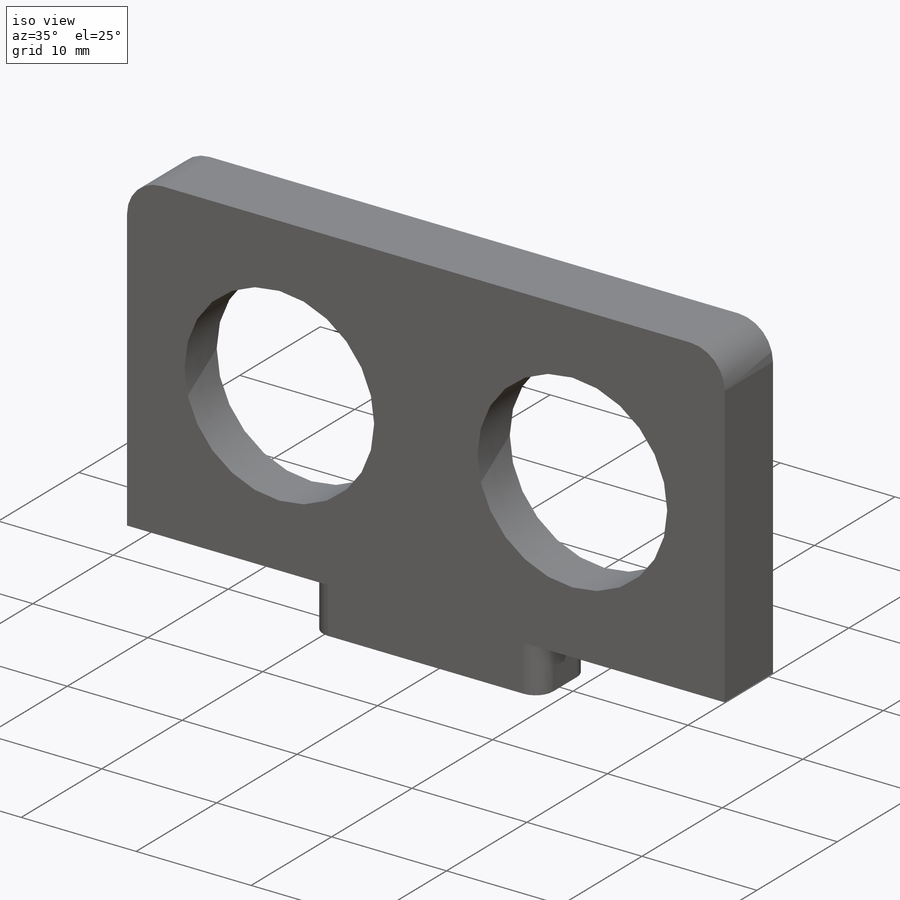
[diagram: iso view]
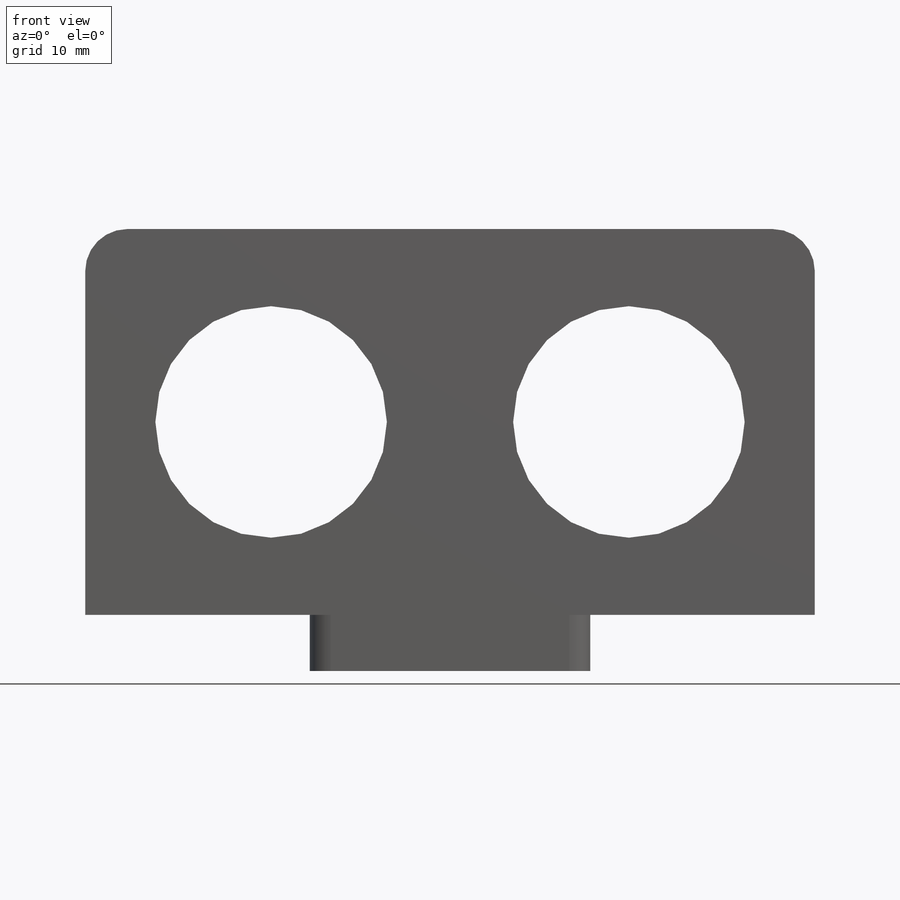
[diagram: front view]
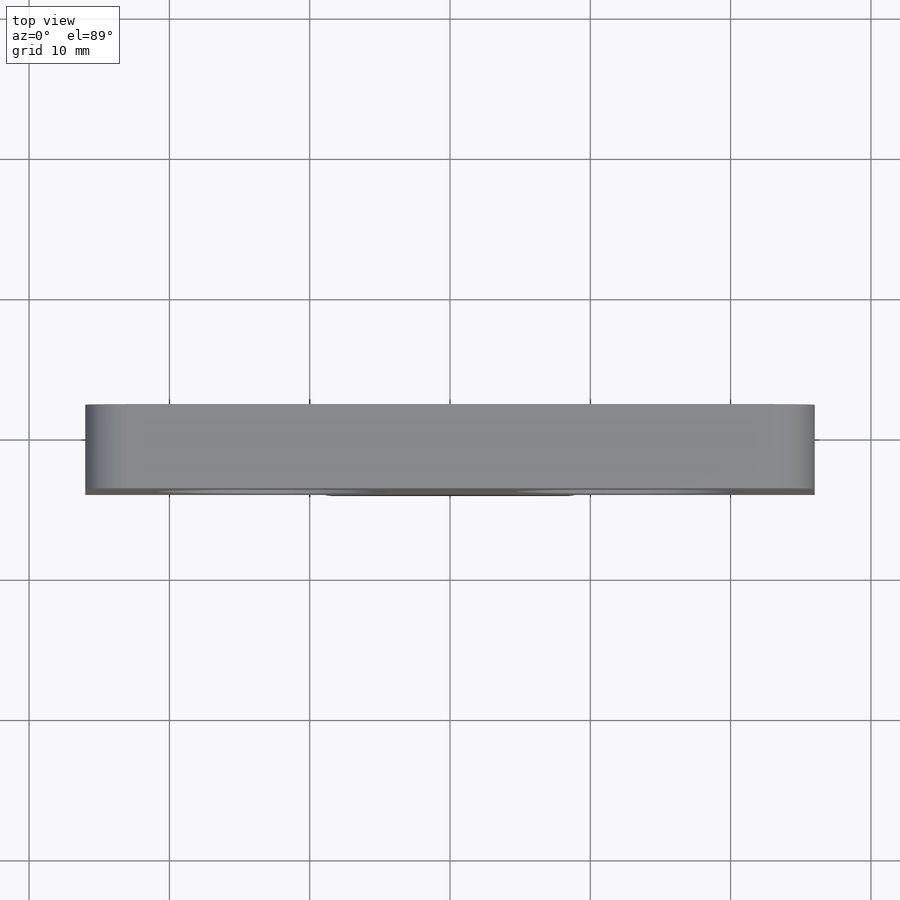
[diagram: top view]
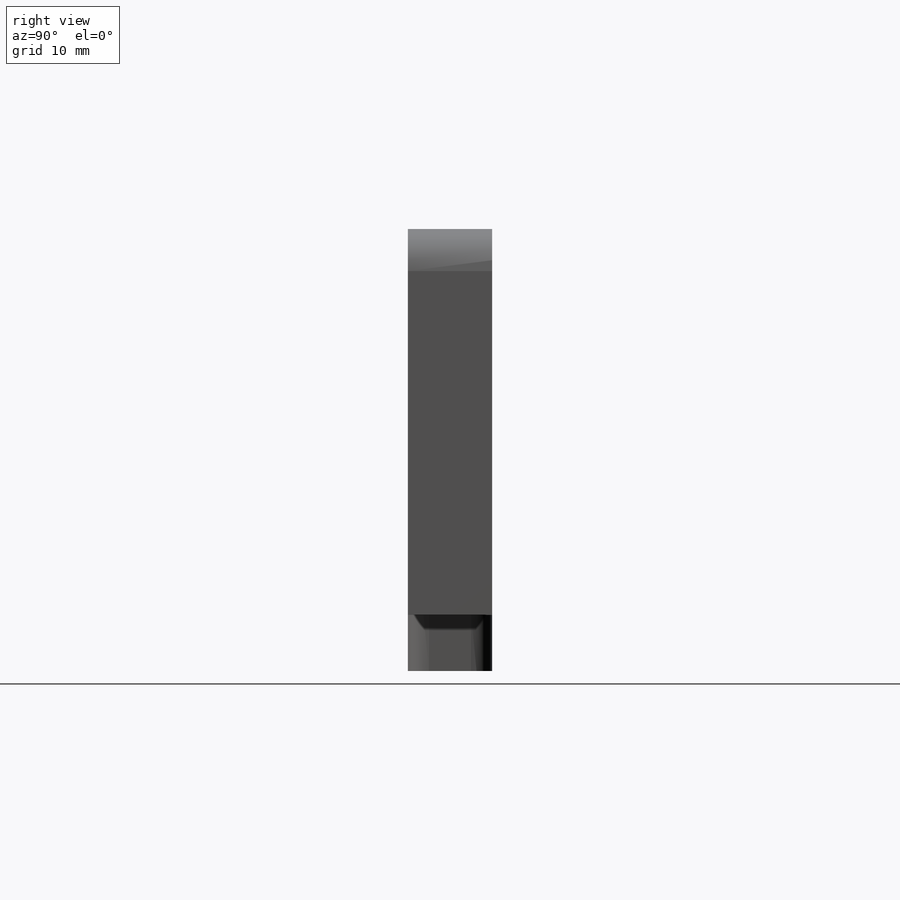
[diagram: right view]
SOLIDWORKS PART (.sldprt)
format: sldprt  version: not decoded by parser v0  size: 310,784 bytes
history: native  units: mm
features: sketch x5, plane x3, extrude x3, cut_extrude x2, fillet x2, material x1 (+10 scaffold rows collapsed)
feature tree (26):
  scaffold x10  (default folders/planes/origin — collapsed)
  material  "Материал <не указан>"
  plane  "Спереди"
  plane  "Сверху"
  plane  "Справа"
  sketch  "Эскиз1"  dims[c1.D1=16.5mm c1.D2=16.0mm c2.D2=16.0mm c3.D2=16.0mm c3.D8=1.0mm c4.D2=42.0mm c4.D3=46.0mm c4.D4=21.5mm c4.D5=1.0mm c4.D6=6.0mm c4.D7=3.0mm]
  extrude  "Бобышка-Вытянуть1"  Depth=4mm
  extrude  "Бобышка-Вытянуть2"  [1 undecoded]
  sketch  "Эскиз1<3>"  dims[D1=2.0mm]
  cut_extrude  "Вырез-Вытянуть1"  [1 undecoded]
  sketch  "Эскиз1<4>"  dims[D1=3.0mm]
  fillet  "Скругление1"  Radius=3mm
  sketch  "Эскиз2"  dims[D1=20.0mm]
  extrude  "Бобышка-Вытянуть3"  Depth=4mm
  fillet  "Скругление2"  Radius=1.5mm
  sketch  "Эскиз3"  dims[D1=1.5mm D2=2.0mm]
  cut_extrude  "Вырез-Вытянуть2"  [1 undecoded]
decode coverage: 9 of 12 modeling features carry decoded parameters
note: 3 parameter values undecoded
summary: no parameter record found for 3 features
note: suppression state not decoded; provenance and decode notes live in map.json
